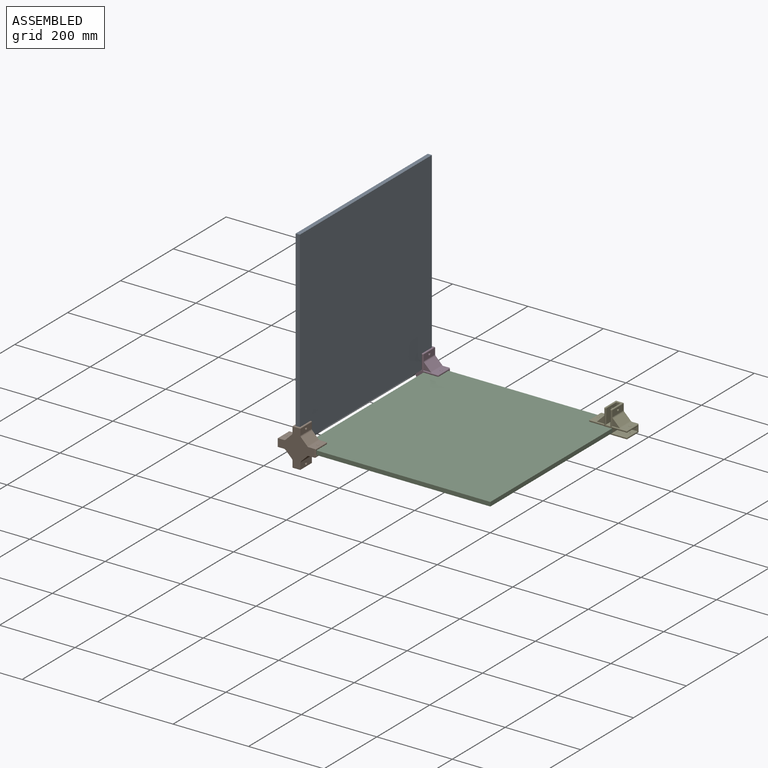
[diagram: assembled view]
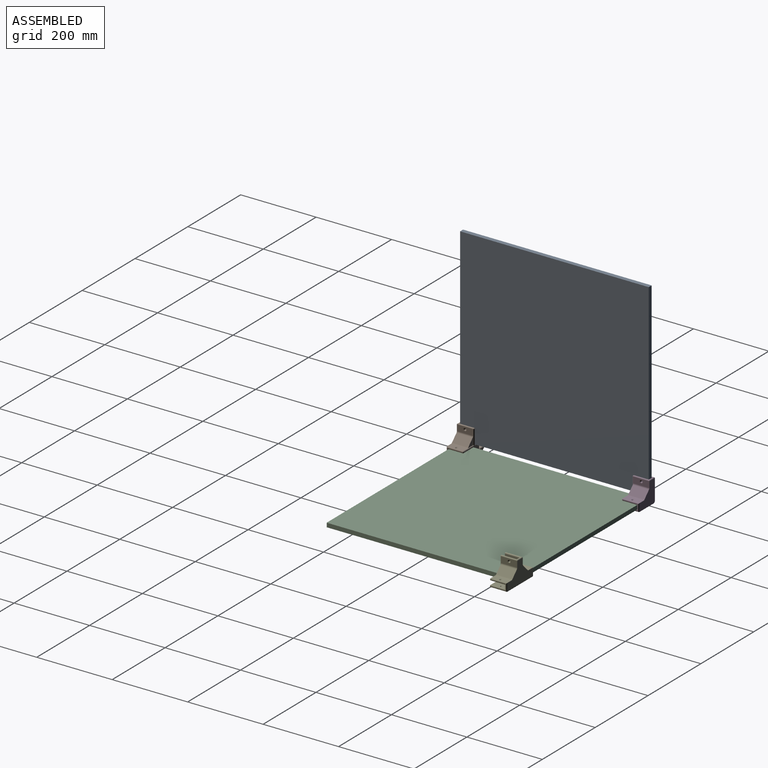
[diagram: assembled view, second angle]
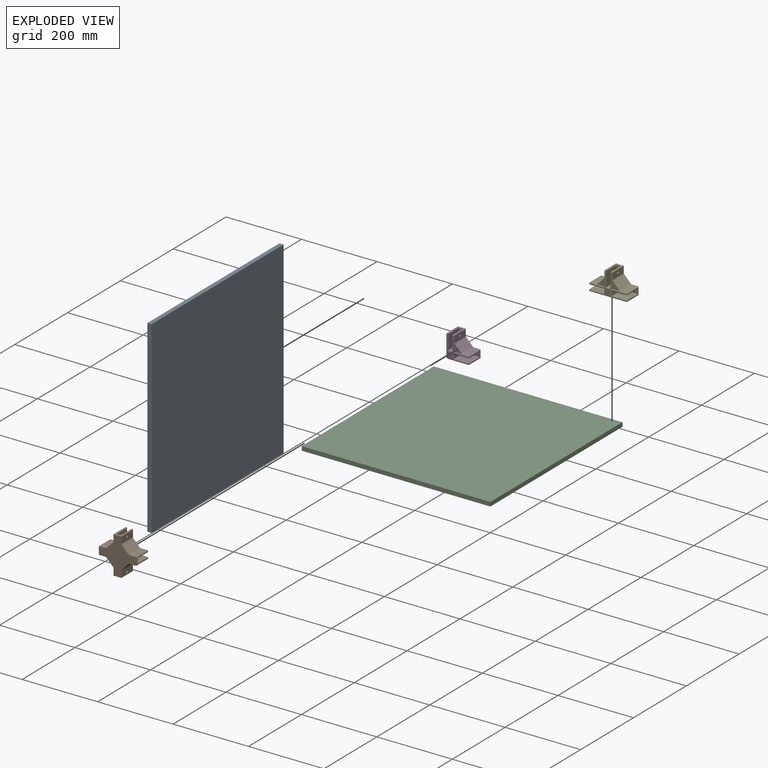
[diagram: exploded view]
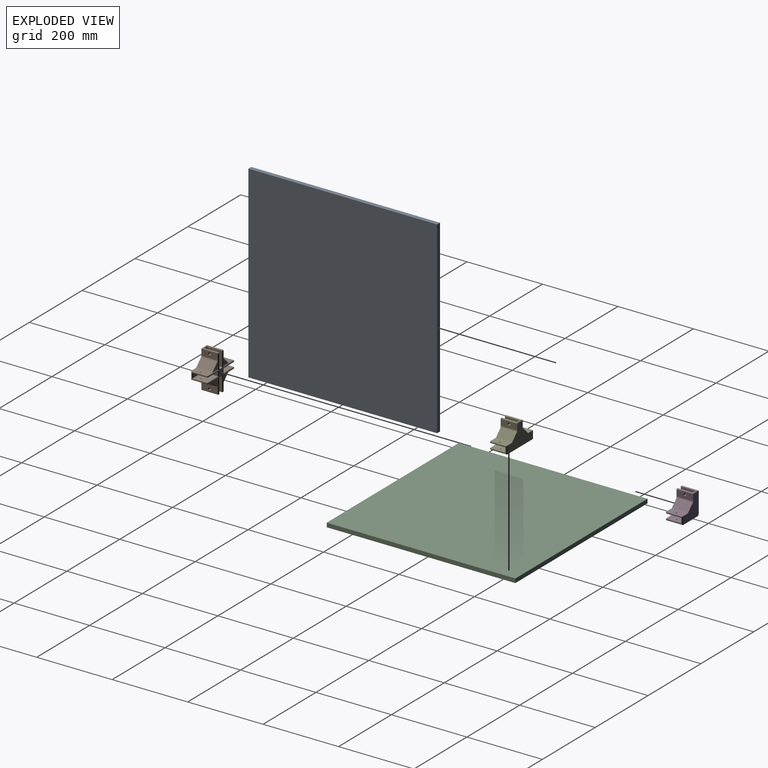
[diagram: exploded view, second angle]
ASSEMBLY  parts=5 mates=4
PART A: 6 faces, bbox 500x500x11 mm
  f0: plane 500x11mm, normal (1,0,0), area 5500mm2, adj f1,f3,f4,f5
  f1: plane 500x11mm, normal (0,1,0), area 5500mm2, adj f0,f2,f4,f5
  f2: plane 500x11mm, normal (-1,0,0), area 5500mm2, adj f1,f3,f4,f5
  f3: plane 500x11mm, normal (0,-1,0), area 5500mm2, adj f0,f2,f4,f5
  f4: plane 500x500mm, normal (0,0,1), area 250000mm2, adj f0,f1,f2,f3
  f5: plane 500x500mm, normal (0,0,-1), area 250000mm2, adj f0,f1,f2,f3
PART B: 130 faces, bbox 101x101x45 mm
  f0: plane 43x15.93mm, normal (-1,0,0), area 644.2mm2, adj f25,f52,f65,f112,f129
  f1: plane 43x15.93mm, normal (0,1,0), area 644.2mm2, adj f25,f40,f46,f113,f127
  f2: plane 43x15.93mm, normal (0,-1,0), area 644.2mm2, adj f25,f41,f47,f106,f126
  f3: plane 43x15.93mm, normal (1,0,0), area 644.2mm2, adj f25,f74,f79,f110,f122
  f4: plane 41x17mm, normal (-1,0,0), area 97mm2, adj f30,f33,f34,f37,f39,f40,f41,f42
  f5: plane 38x38mm, normal (0,-1,0), area 1436.9mm2, adj f6,f29,f32,f33,f119
  f6: plane 38x11mm, normal (-1,0,0), area 418mm2, adj f5,f7,f29,f31
  f7: plane 38x38mm, normal (0,1,0), area 1436.9mm2, adj f6,f29,f34,f35,f118
  f8: plane 43x15.93mm, normal (-1,0,0), area 644.2mm2, adj f25,f53,f66,f107,f128
  f9: plane 41x17mm, normal (0,-1,0), area 97mm2, adj f54,f55,f61,f66,f67,f71,f75,f76
  f10: plane 38x38mm, normal (1,0,0), area 1436.9mm2, adj f11,f27,f55,f56,f117
  f11: plane 38x11mm, normal (0,-1,0), area 418mm2, adj f10,f12,f27,f62
  f12: plane 38x38mm, normal (-1,0,0), area 1436.9mm2, adj f11,f27,f67,f68,f116
  f13: plane 43x15.93mm, normal (1,0,0), area 644.2mm2, adj f25,f75,f81,f108,f125
  f14: plane 43x15.93mm, normal (0,-1,0), area 644.2mm2, adj f25,f84,f85,f109,f124
  f15: plane 41x17mm, normal (1,0,0), area 97mm2, adj f80,f83,f84,f90,f91,f95,f96,f97
  f16: plane 38x38mm, normal (0,1,0), area 1436.9mm2, adj f17,f28,f92,f96,f115
  f17: plane 38x11mm, normal (1,0,0), area 418mm2, adj f16,f18,f28,f88
  f18: plane 38x38mm, normal (0,-1,0), area 1436.9mm2, adj f17,f28,f89,f95,f114
  f19: plane 43x15.93mm, normal (0,1,0), area 644.2mm2, adj f25,f82,f83,f111,f123
  f20: plane 41x17mm, normal (0,1,0), area 97mm2, adj f50,f51,f58,f64,f65,f70,f73,f74
  f21: plane 38x38mm, normal (-1,0,0), area 1436.9mm2, adj f22,f26,f63,f64,f121
  f22: plane 38x11mm, normal (0,1,0), area 418mm2, adj f21,f23,f26,f57
  f23: plane 38x38mm, normal (1,0,0), area 1436.9mm2, adj f22,f26,f49,f50,f120
  f24: plane 97x97mm, normal (0,0,1), area 609mm2, adj f31,f32,f35,f39,f42,f46,f47,f49
  f25: plane 97x97mm, normal (0,0,-1), area 4437.3mm2, adj f0,f1,f2,f3,f8,f13,f14,f19
  f26: plane 38x11mm, normal (0,0,1), area 418mm2, adj f21,f22,f23,f58
  f27: plane 38x11mm, normal (0,0,1), area 418mm2, adj f10,f11,f12,f61
  f28: plane 38x11mm, normal (0,0,1), area 418mm2, adj f16,f17,f18,f97
  f29: plane 38x11mm, normal (0,0,1), area 418mm2, adj f5,f6,f7,f30
  f30: cylinder r=2mm len=15mm, axis (0,1,0), area 39.1mm2, adj f4,f29,f33,f34
  f31: cylinder r=2mm len=15mm, axis (0,1,0), area 39.1mm2, adj f6,f24,f32,f35
  f32: cylinder r=2mm len=40mm, axis (-1,0,0), area 121.7mm2, adj f5,f24,f31,f36
  f33: cylinder r=2mm len=40mm, axis (0,0,-1), area 121.7mm2, adj f4,f5,f30,f36
  f34: cylinder r=2mm len=40mm, axis (0,0,1), area 121.7mm2, adj f4,f7,f30,f38
  f35: cylinder r=2mm len=40mm, axis (1,0,0), area 121.7mm2, adj f7,f24,f31,f38
  f36: sphere r=2mm, area 6.3mm2, adj f32,f33,f39
  f37: cylinder r=2mm len=21mm, axis (0,-1,0), area 61.4mm2, adj f4,f25,f40,f41
  f38: sphere r=2mm, area 6.3mm2, adj f34,f35,f42
  f39: cylinder r=2mm len=2mm, axis (0,1,0), area 3.1mm2, adj f4,f24,f36,f43
  f40: cylinder r=2mm len=43mm, axis (0,0,1), area 132.8mm2, adj f1,f4,f37,f43
  f41: cylinder r=2mm len=43mm, axis (0,0,-1), area 132.8mm2, adj f2,f4,f37,f44
  f42: cylinder r=2mm len=2mm, axis (0,1,0), area 3.1mm2, adj f4,f24,f38,f44
  f43: sphere r=2mm, area 6.3mm2, adj f39,f40,f46
  f44: sphere r=2mm, area 6.3mm2, adj f41,f42,f47
  f45: sphere r=2mm, area 6.3mm2, adj f49,f50,f51
  f46: cylinder r=2mm len=40mm, axis (1,0,0), area 121.7mm2, adj f1,f24,f43,f52,f104
  f47: cylinder r=2mm len=40mm, axis (-1,0,0), area 121.7mm2, adj f2,f24,f44,f53,f102
  f48: sphere r=2mm, area 6.3mm2, adj f54,f55,f56
  f49: cylinder r=2mm len=40mm, axis (0,-1,0), area 121.7mm2, adj f23,f24,f45,f57
  f50: cylinder r=2mm len=40mm, axis (0,0,1), area 121.7mm2, adj f20,f23,f45,f58
  f51: cylinder r=2mm len=2mm, axis (1,0,0), area 3.1mm2, adj f20,f24,f45,f59
  f52: cylinder r=2mm len=40mm, axis (0,1,0), area 121.7mm2, adj f0,f24,f46,f59,f104
  f53: cylinder r=2mm len=40mm, axis (0,1,0), area 121.7mm2, adj f8,f24,f47,f60,f102
  f54: cylinder r=2mm len=2mm, axis (-1,0,0), area 3.1mm2, adj f9,f24,f48,f60
  f55: cylinder r=2mm len=40mm, axis (0,0,1), area 121.7mm2, adj f9,f10,f48,f61
  f56: cylinder r=2mm len=40mm, axis (0,-1,0), area 121.7mm2, adj f10,f24,f48,f62
  f57: cylinder r=2mm len=15mm, axis (1,0,0), area 39.1mm2, adj f22,f24,f49,f63
  f58: cylinder r=2mm len=15mm, axis (1,0,0), area 39.1mm2, adj f20,f26,f50,f64
  f59: sphere r=2mm, area 6.3mm2, adj f51,f52,f65
  f60: sphere r=2mm, area 6.3mm2, adj f53,f54,f66
  f61: cylinder r=2mm len=15mm, axis (-1,0,0), area 39.1mm2, adj f9,f27,f55,f67
  f62: cylinder r=2mm len=15mm, axis (-1,0,0), area 39.1mm2, adj f11,f24,f56,f68
  f63: cylinder r=2mm len=40mm, axis (0,1,0), area 121.7mm2, adj f21,f24,f57,f69
  f64: cylinder r=2mm len=40mm, axis (0,0,-1), area 121.7mm2, adj f20,f21,f58,f69
  f65: cylinder r=2mm len=43mm, axis (0,0,-1), area 132.8mm2, adj f0,f20,f59,f70
  f66: cylinder r=2mm len=43mm, axis (0,0,1), area 132.8mm2, adj f8,f9,f60,f71
  f67: cylinder r=2mm len=40mm, axis (0,0,-1), area 121.7mm2, adj f9,f12,f61,f72
  f68: cylinder r=2mm len=40mm, axis (0,1,0), area 121.7mm2, adj f12,f24,f62,f72
  f69: sphere r=2mm, area 6.3mm2, adj f63,f64,f73
  f70: cylinder r=2mm len=21mm, axis (-1,0,0), area 61.4mm2, adj f20,f25,f65,f74
  f71: cylinder r=2mm len=21mm, axis (1,0,0), area 61.4mm2, adj f9,f25,f66,f75
  f72: sphere r=2mm, area 6.3mm2, adj f67,f68,f76
  f73: cylinder r=2mm len=2mm, axis (1,0,0), area 3.1mm2, adj f20,f24,f69,f77
  f74: cylinder r=2mm len=43mm, axis (0,0,1), area 132.8mm2, adj f3,f20,f70,f77
  f75: cylinder r=2mm len=43mm, axis (0,0,-1), area 132.8mm2, adj f9,f13,f71,f78
  f76: cylinder r=2mm len=2mm, axis (-1,0,0), area 3.1mm2, adj f9,f24,f72,f78
  f77: sphere r=2mm, area 6.3mm2, adj f73,f74,f79
  f78: sphere r=2mm, area 6.3mm2, adj f75,f76,f81
  f79: cylinder r=2mm len=40mm, axis (0,-1,0), area 121.7mm2, adj f3,f24,f77,f82,f98
  f80: cylinder r=2mm len=21mm, axis (0,1,0), area 61.4mm2, adj f15,f25,f83,f84
  f81: cylinder r=2mm len=40mm, axis (0,-1,0), area 121.7mm2, adj f13,f24,f78,f85,f100
  f82: cylinder r=2mm len=40mm, axis (1,0,0), area 121.7mm2, adj f19,f24,f79,f86,f98
  f83: cylinder r=2mm len=43mm, axis (0,0,-1), area 132.8mm2, adj f15,f19,f80,f86
  f84: cylinder r=2mm len=43mm, axis (0,0,1), area 132.8mm2, adj f14,f15,f80,f87
  f85: cylinder r=2mm len=40mm, axis (-1,0,0), area 121.7mm2, adj f14,f24,f81,f87,f100
  f86: sphere r=2mm, area 6.3mm2, adj f82,f83,f90
  f87: sphere r=2mm, area 6.3mm2, adj f84,f85,f91
  f88: cylinder r=2mm len=15mm, axis (0,-1,0), area 39.1mm2, adj f17,f24,f89,f92
  f89: cylinder r=2mm len=40mm, axis (-1,0,0), area 121.7mm2, adj f18,f24,f88,f93
  f90: cylinder r=2mm len=2mm, axis (0,-1,0), area 3.1mm2, adj f15,f24,f86,f93
  f91: cylinder r=2mm len=2mm, axis (0,-1,0), area 3.1mm2, adj f15,f24,f87,f94
  f92: cylinder r=2mm len=40mm, axis (1,0,0), area 121.7mm2, adj f16,f24,f88,f94
  f93: sphere r=2mm, area 6.3mm2, adj f89,f90,f95
  f94: sphere r=2mm, area 6.3mm2, adj f91,f92,f96
  f95: cylinder r=2mm len=40mm, axis (0,0,-1), area 121.7mm2, adj f15,f18,f93,f97
  f96: cylinder r=2mm len=40mm, axis (0,0,1), area 121.7mm2, adj f15,f16,f94,f97
  f97: cylinder r=2mm len=15mm, axis (0,-1,0), area 39.1mm2, adj f15,f28,f95,f96
  f98: plane 22.07x22.07mm, normal (0,0,1), area 201.1mm2, adj f79,f82,f99,f110,f111
  f99: plane 43x17.07mm, normal (0.71,0.71,0), area 1038.1mm2, adj f25,f98,f110,f111
  f100: plane 22.07x22.07mm, normal (0,0,1), area 201.1mm2, adj f81,f85,f101,f108,f109
  f101: plane 43x17.07mm, normal (0.71,-0.71,0), area 1038.1mm2, adj f25,f100,f108,f109
  f102: plane 22.07x22.07mm, normal (0,0,1), area 201.1mm2, adj f47,f53,f103,f106,f107
  f103: plane 43x17.07mm, normal (-0.71,-0.71,0), area 1038.1mm2, adj f25,f102,f106,f107
  f104: plane 22.07x22.07mm, normal (0,0,1), area 201.1mm2, adj f46,f52,f105,f112,f113
  f105: plane 43x17.07mm, normal (-0.71,0.71,0), area 1038.1mm2, adj f25,f104,f112,f113
  f106: cylinder r=5mm len=43mm, axis (0,0,1), area 168.9mm2, adj f2,f25,f102,f103
  f107: cylinder r=5mm len=43mm, axis (0,0,1), area 168.9mm2, adj f8,f25,f102,f103
  f108: cylinder r=5mm len=43mm, axis (0,0,-1), area 168.9mm2, adj f13,f25,f100,f101
  f109: cylinder r=5mm len=43mm, axis (0,0,1), area 168.9mm2, adj f14,f25,f100,f101
  f110: cylinder r=5mm len=43mm, axis (0,0,1), area 168.9mm2, adj f3,f25,f98,f99
  f111: cylinder r=5mm len=43mm, axis (0,0,1), area 168.9mm2, adj f19,f25,f98,f99
  f112: cylinder r=5mm len=43mm, axis (0,0,1), area 168.9mm2, adj f0,f25,f104,f105
  f113: cylinder r=5mm len=43mm, axis (0,0,-1), area 168.9mm2, adj f1,f25,f104,f105
  f114: cylinder r=1.5mm len=3mm, axis (0,-1,0), area 27.3mm2, adj f18,f123
  f115: cylinder r=1.5mm len=3mm, axis (0,-1,0), area 27.3mm2, adj f16,f124
  f116: cylinder r=1.5mm len=3mm, axis (-1,0,0), area 27.3mm2, adj f12,f125
  f117: cylinder r=1.5mm len=3mm, axis (-1,0,0), area 27.3mm2, adj f10,f128
  f118: cylinder r=1.5mm len=3mm, axis (0,1,0), area 27.3mm2, adj f7,f126
  f119: cylinder r=1.5mm len=3mm, axis (0,1,0), area 27.3mm2, adj f5,f127
  f120: cylinder r=1.5mm len=3mm, axis (1,0,0), area 27.3mm2, adj f23,f129
  f121: cylinder r=1.5mm len=3mm, axis (1,0,0), area 27.3mm2, adj f21,f122
  f122: cone r=1.5mm half-angle=45deg, axis (1,0,0), area 47.6mm2, adj f3,f121
  f123: cone r=1.5mm half-angle=45deg, axis (0,1,0), area 47.6mm2, adj f19,f114
  f124: cone r=1.5mm half-angle=45deg, axis (0,-1,0), area 47.6mm2, adj f14,f115
  f125: cone r=1.5mm half-angle=45deg, axis (1,0,0), area 47.6mm2, adj f13,f116
  f126: cone r=3.6mm half-angle=45deg, axis (0,-1,0), area 47.6mm2, adj f2,f118
  f127: cone r=1.5mm half-angle=45deg, axis (0,1,0), area 47.6mm2, adj f1,f119
  f128: cone r=1.5mm half-angle=45deg, axis (-1,0,0), area 47.6mm2, adj f8,f117
  f129: cone r=3.6mm half-angle=45deg, axis (-1,0,0), area 47.6mm2, adj f0,f120
PART C: same geometry as A
PART D: 64 faces, bbox 61.4x61.4x45 mm
  f0: plane 57x57mm, normal (0,0,1), area 447.1mm2, adj f17,f18,f21,f25,f28,f31,f33,f34
  f1: plane 43x15.93mm, normal (1,0,0), area 644.2mm2, adj f13,f26,f31,f52,f60
  f2: plane 54x43mm, normal (-1,0,0), area 2281.3mm2, adj f13,f27,f33,f61,f62
  f3: plane 54x43mm, normal (0,-1,0), area 2281.3mm2, adj f13,f36,f37,f59,f62
  f4: plane 41x17mm, normal (1,0,0), area 97mm2, adj f32,f35,f36,f42,f43,f47,f48,f49
  f5: plane 38x38mm, normal (0,1,0), area 1436.9mm2, adj f6,f15,f44,f48,f55
  f6: plane 38x11mm, normal (1,0,0), area 418mm2, adj f5,f7,f15,f40
  f7: plane 38x38mm, normal (0,-1,0), area 1436.9mm2, adj f6,f15,f41,f47,f54
  f8: plane 43x15.93mm, normal (0,1,0), area 644.2mm2, adj f13,f34,f35,f53,f58
  f9: plane 41x17mm, normal (0,1,0), area 97mm2, adj f16,f19,f20,f23,f25,f26,f27,f28
  f10: plane 38x38mm, normal (-1,0,0), area 1436.9mm2, adj f11,f14,f18,f19,f57
  f11: plane 38x11mm, normal (0,1,0), area 418mm2, adj f10,f12,f14,f17
  f12: plane 38x38mm, normal (1,0,0), area 1436.9mm2, adj f11,f14,f20,f21,f56
  f13: plane 59x59mm, normal (0,0,-1), area 2232.7mm2, adj f1,f2,f3,f8,f23,f32,f51,f52
  f14: plane 38x11mm, normal (0,0,1), area 418mm2, adj f10,f11,f12,f16
  f15: plane 38x11mm, normal (0,0,1), area 418mm2, adj f5,f6,f7,f49
  f16: cylinder r=2mm len=15mm, axis (1,0,0), area 39.1mm2, adj f9,f14,f19,f20
  f17: cylinder r=2mm len=15mm, axis (1,0,0), area 39.1mm2, adj f0,f11,f18,f21
  f18: cylinder r=2mm len=40mm, axis (0,1,0), area 121.7mm2, adj f0,f10,f17,f22
  f19: cylinder r=2mm len=40mm, axis (0,0,-1), area 121.7mm2, adj f9,f10,f16,f22
  f20: cylinder r=2mm len=40mm, axis (0,0,1), area 121.7mm2, adj f9,f12,f16,f24
  f21: cylinder r=2mm len=40mm, axis (0,-1,0), area 121.7mm2, adj f0,f12,f17,f24
  f22: sphere r=2mm, area 6.3mm2, adj f18,f19,f25
  f23: cylinder r=2mm len=21mm, axis (-1,0,0), area 61.4mm2, adj f9,f13,f26,f27
  f24: sphere r=2mm, area 6.3mm2, adj f20,f21,f28
  f25: cylinder r=2mm len=2mm, axis (1,0,0), area 3.1mm2, adj f0,f9,f22,f29
  f26: cylinder r=2mm len=43mm, axis (0,0,1), area 132.8mm2, adj f1,f9,f23,f29
  f27: cylinder r=2mm len=43mm, axis (0,0,-1), area 132.8mm2, adj f2,f9,f23,f30
  f28: cylinder r=2mm len=2mm, axis (1,0,0), area 3.1mm2, adj f0,f9,f24,f30
  f29: sphere r=2mm, area 6.3mm2, adj f25,f26,f31
  f30: sphere r=2mm, area 6.3mm2, adj f27,f28,f33
  f31: cylinder r=2mm len=40mm, axis (0,-1,0), area 121.7mm2, adj f0,f1,f29,f34,f50
  f32: cylinder r=2mm len=21mm, axis (0,1,0), area 61.4mm2, adj f4,f13,f35,f36
  f33: cylinder r=2mm len=54mm, axis (0,1,0), area 169.6mm2, adj f0,f2,f30,f63
  f34: cylinder r=2mm len=40mm, axis (1,0,0), area 121.7mm2, adj f0,f8,f31,f38,f50
  f35: cylinder r=2mm len=43mm, axis (0,0,-1), area 132.8mm2, adj f4,f8,f32,f38
  f36: cylinder r=2mm len=43mm, axis (0,0,1), area 132.8mm2, adj f3,f4,f32,f39
  f37: cylinder r=2mm len=54mm, axis (-1,0,0), area 169.6mm2, adj f0,f3,f39,f63
  f38: sphere r=2mm, area 6.3mm2, adj f34,f35,f42
  f39: sphere r=2mm, area 6.3mm2, adj f36,f37,f43
  f40: cylinder r=2mm len=15mm, axis (0,-1,0), area 39.1mm2, adj f0,f6,f41,f44
  f41: cylinder r=2mm len=40mm, axis (-1,0,0), area 121.7mm2, adj f0,f7,f40,f45
  f42: cylinder r=2mm len=2mm, axis (0,-1,0), area 3.1mm2, adj f0,f4,f38,f45
  f43: cylinder r=2mm len=2mm, axis (0,-1,0), area 3.1mm2, adj f0,f4,f39,f46
  f44: cylinder r=2mm len=40mm, axis (1,0,0), area 121.7mm2, adj f0,f5,f40,f46
  f45: sphere r=2mm, area 6.3mm2, adj f41,f42,f47
  f46: sphere r=2mm, area 6.3mm2, adj f43,f44,f48
  f47: cylinder r=2mm len=40mm, axis (0,0,-1), area 121.7mm2, adj f4,f7,f45,f49
  f48: cylinder r=2mm len=40mm, axis (0,0,1), area 121.7mm2, adj f4,f5,f46,f49
  f49: cylinder r=2mm len=15mm, axis (0,-1,0), area 39.1mm2, adj f4,f15,f47,f48
  f50: plane 22.07x22.07mm, normal (0,0,1), area 201.1mm2, adj f31,f34,f51,f52,f53
  f51: plane 43x17.07mm, normal (0.71,0.71,0), area 1038.1mm2, adj f13,f50,f52,f53
  f52: cylinder r=5mm len=43mm, axis (0,0,1), area 168.9mm2, adj f1,f13,f50,f51
  f53: cylinder r=5mm len=43mm, axis (0,0,1), area 168.9mm2, adj f8,f13,f50,f51
  f54: cylinder r=1.5mm len=3mm, axis (0,-1,0), area 27.3mm2, adj f7,f58
  f55: cylinder r=1.5mm len=3mm, axis (0,-1,0), area 27.3mm2, adj f5,f59
  f56: cylinder r=1.5mm len=3mm, axis (-1,0,0), area 27.3mm2, adj f12,f61
  f57: cylinder r=1.5mm len=3mm, axis (-1,0,0), area 27.3mm2, adj f10,f60
  f58: cone r=1.5mm half-angle=45deg, axis (0,1,0), area 47.6mm2, adj f8,f54
  f59: cone r=1.5mm half-angle=45deg, axis (0,-1,0), area 47.6mm2, adj f3,f55
  f60: cone r=1.5mm half-angle=45deg, axis (1,0,0), area 47.6mm2, adj f1,f57
  f61: cone r=1.5mm half-angle=45deg, axis (-1,0,0), area 47.6mm2, adj f2,f56
  f62: cylinder r=5mm len=43mm, axis (0,0,-1), area 337.7mm2, adj f2,f3,f13,f63
  f63: torus R=3mm, axis (0,0,1), area 21.1mm2, adj f0,f33,f37,f62
PART E: 92 faces, bbox 101x61x45 mm
  f0: plane 43x15.93mm, normal (-1,0,0), area 644.2mm2, adj f18,f26,f37,f77,f87
  f1: plane 43x15.93mm, normal (0,1,0), area 644.2mm2, adj f18,f31,f43,f76,f86
  f2: plane 43x15.93mm, normal (1,0,0), area 644.2mm2, adj f18,f47,f53,f78,f88
  f3: plane 41x17mm, normal (-1,0,0), area 97mm2, adj f32,f33,f39,f43,f44,f48,f51,f52
  f4: plane 38x38mm, normal (0,-1,0), area 1436.9mm2, adj f5,f21,f33,f34,f85
  f5: plane 38x11mm, normal (-1,0,0), area 418mm2, adj f4,f6,f21,f40
  f6: plane 38x38mm, normal (0,1,0), area 1436.9mm2, adj f5,f21,f44,f45,f84
  f7: plane 97x43mm, normal (0,-1,0), area 4089.6mm2, adj f18,f51,f58,f59,f90,f91
  f8: plane 41x17mm, normal (1,0,0), area 97mm2, adj f54,f57,f58,f64,f65,f69,f70,f71
  f9: plane 38x38mm, normal (0,1,0), area 1436.9mm2, adj f10,f20,f66,f70,f81
  f10: plane 38x11mm, normal (1,0,0), area 418mm2, adj f9,f11,f20,f62
  f11: plane 38x38mm, normal (0,-1,0), area 1436.9mm2, adj f10,f20,f63,f69,f80
  f12: plane 43x15.93mm, normal (0,1,0), area 644.2mm2, adj f18,f56,f57,f79,f89
  f13: plane 41x17mm, normal (0,1,0), area 97mm2, adj f24,f25,f29,f36,f37,f42,f46,f47
  f14: plane 38x38mm, normal (-1,0,0), area 1436.9mm2, adj f15,f19,f35,f36,f83
  f15: plane 38x11mm, normal (0,1,0), area 418mm2, adj f14,f16,f19,f28
  f16: plane 38x38mm, normal (1,0,0), area 1436.9mm2, adj f15,f19,f23,f24,f82
  f17: plane 97x57mm, normal (0,0,1), area 529mm2, adj f23,f25,f26,f28,f31,f32,f34,f35
  f18: plane 97x59mm, normal (0,0,-1), area 3237.2mm2, adj f0,f1,f2,f7,f12,f42,f48,f54
  f19: plane 38x11mm, normal (0,0,1), area 418mm2, adj f14,f15,f16,f29
  f20: plane 38x11mm, normal (0,0,1), area 418mm2, adj f9,f10,f11,f71
  f21: plane 38x11mm, normal (0,0,1), area 418mm2, adj f4,f5,f6,f39
  f22: sphere r=2mm, area 6.3mm2, adj f23,f24,f25
  f23: cylinder r=2mm len=40mm, axis (0,-1,0), area 121.7mm2, adj f16,f17,f22,f28
  f24: cylinder r=2mm len=40mm, axis (0,0,1), area 121.7mm2, adj f13,f16,f22,f29
  f25: cylinder r=2mm len=2mm, axis (1,0,0), area 3.1mm2, adj f13,f17,f22,f30
  f26: cylinder r=2mm len=40mm, axis (0,1,0), area 121.7mm2, adj f0,f17,f30,f31,f74
  f27: sphere r=2mm, area 6.3mm2, adj f32,f33,f34
  f28: cylinder r=2mm len=15mm, axis (1,0,0), area 39.1mm2, adj f15,f17,f23,f35
  f29: cylinder r=2mm len=15mm, axis (1,0,0), area 39.1mm2, adj f13,f19,f24,f36
  f30: sphere r=2mm, area 6.3mm2, adj f25,f26,f37
  f31: cylinder r=2mm len=40mm, axis (1,0,0), area 121.7mm2, adj f1,f17,f26,f38,f74
  f32: cylinder r=2mm len=2mm, axis (0,1,0), area 3.1mm2, adj f3,f17,f27,f38
  f33: cylinder r=2mm len=40mm, axis (0,0,-1), area 121.7mm2, adj f3,f4,f27,f39
  f34: cylinder r=2mm len=40mm, axis (-1,0,0), area 121.7mm2, adj f4,f17,f27,f40
  f35: cylinder r=2mm len=40mm, axis (0,1,0), area 121.7mm2, adj f14,f17,f28,f41
  f36: cylinder r=2mm len=40mm, axis (0,0,-1), area 121.7mm2, adj f13,f14,f29,f41
  f37: cylinder r=2mm len=43mm, axis (0,0,-1), area 132.8mm2, adj f0,f13,f30,f42
  f38: sphere r=2mm, area 6.3mm2, adj f31,f32,f43
  f39: cylinder r=2mm len=15mm, axis (0,1,0), area 39.1mm2, adj f3,f21,f33,f44
  f40: cylinder r=2mm len=15mm, axis (0,1,0), area 39.1mm2, adj f5,f17,f34,f45
  f41: sphere r=2mm, area 6.3mm2, adj f35,f36,f46
  f42: cylinder r=2mm len=21mm, axis (-1,0,0), area 61.4mm2, adj f13,f18,f37,f47
  f43: cylinder r=2mm len=43mm, axis (0,0,1), area 132.8mm2, adj f1,f3,f38,f48
  f44: cylinder r=2mm len=40mm, axis (0,0,1), area 121.7mm2, adj f3,f6,f39,f49
  f45: cylinder r=2mm len=40mm, axis (1,0,0), area 121.7mm2, adj f6,f17,f40,f49
  f46: cylinder r=2mm len=2mm, axis (1,0,0), area 3.1mm2, adj f13,f17,f41,f50
  f47: cylinder r=2mm len=43mm, axis (0,0,1), area 132.8mm2, adj f2,f13,f42,f50
  f48: cylinder r=2mm len=21mm, axis (0,-1,0), area 61.4mm2, adj f3,f18,f43,f51
  f49: sphere r=2mm, area 6.3mm2, adj f44,f45,f52
  f50: sphere r=2mm, area 6.3mm2, adj f46,f47,f53
  f51: cylinder r=2mm len=43mm, axis (0,0,-1), area 132.8mm2, adj f3,f7,f48,f55
  f52: cylinder r=2mm len=2mm, axis (0,1,0), area 3.1mm2, adj f3,f17,f49,f55
  f53: cylinder r=2mm len=40mm, axis (0,-1,0), area 121.7mm2, adj f2,f17,f50,f56,f72
  f54: cylinder r=2mm len=21mm, axis (0,1,0), area 61.4mm2, adj f8,f18,f57,f58
  f55: sphere r=2mm, area 6.3mm2, adj f51,f52,f59
  f56: cylinder r=2mm len=40mm, axis (1,0,0), area 121.7mm2, adj f12,f17,f53,f60,f72
  f57: cylinder r=2mm len=43mm, axis (0,0,-1), area 132.8mm2, adj f8,f12,f54,f60
  f58: cylinder r=2mm len=43mm, axis (0,0,1), area 132.8mm2, adj f7,f8,f54,f61
  f59: cylinder r=2mm len=97mm, axis (-1,0,0), area 304.7mm2, adj f7,f17,f55,f61
  f60: sphere r=2mm, area 6.3mm2, adj f56,f57,f64
  f61: sphere r=2mm, area 6.3mm2, adj f58,f59,f65
  f62: cylinder r=2mm len=15mm, axis (0,-1,0), area 39.1mm2, adj f10,f17,f63,f66
  f63: cylinder r=2mm len=40mm, axis (-1,0,0), area 121.7mm2, adj f11,f17,f62,f67
  f64: cylinder r=2mm len=2mm, axis (0,-1,0), area 3.1mm2, adj f8,f17,f60,f67
  f65: cylinder r=2mm len=2mm, axis (0,-1,0), area 3.1mm2, adj f8,f17,f61,f68
  f66: cylinder r=2mm len=40mm, axis (1,0,0), area 121.7mm2, adj f9,f17,f62,f68
  f67: sphere r=2mm, area 6.3mm2, adj f63,f64,f69
  f68: sphere r=2mm, area 6.3mm2, adj f65,f66,f70
  f69: cylinder r=2mm len=40mm, axis (0,0,-1), area 121.7mm2, adj f8,f11,f67,f71
  f70: cylinder r=2mm len=40mm, axis (0,0,1), area 121.7mm2, adj f8,f9,f68,f71
  f71: cylinder r=2mm len=15mm, axis (0,-1,0), area 39.1mm2, adj f8,f20,f69,f70
  f72: plane 22.07x22.07mm, normal (0,0,1), area 201.1mm2, adj f53,f56,f73,f78,f79
  f73: plane 43x17.07mm, normal (0.71,0.71,0), area 1038.1mm2, adj f18,f72,f78,f79
  f74: plane 22.07x22.07mm, normal (0,0,1), area 201.1mm2, adj f26,f31,f75,f76,f77
  f75: plane 43x17.07mm, normal (-0.71,0.71,0), area 1038.1mm2, adj f18,f74,f76,f77
  f76: cylinder r=5mm len=43mm, axis (0,0,-1), area 168.9mm2, adj f1,f18,f74,f75
  f77: cylinder r=5mm len=43mm, axis (0,0,1), area 168.9mm2, adj f0,f18,f74,f75
  f78: cylinder r=5mm len=43mm, axis (0,0,1), area 168.9mm2, adj f2,f18,f72,f73
  f79: cylinder r=5mm len=43mm, axis (0,0,1), area 168.9mm2, adj f12,f18,f72,f73
  f80: cylinder r=1.5mm len=3mm, axis (0,1,0), area 27.3mm2, adj f11,f89
  f81: cylinder r=1.5mm len=3mm, axis (0,1,0), area 27.3mm2, adj f9,f91
  f82: cylinder r=1.5mm len=3mm, axis (1,0,0), area 27.3mm2, adj f16,f87
  f83: cylinder r=1.5mm len=3mm, axis (1,0,0), area 27.3mm2, adj f14,f88
  f84: cylinder r=1.5mm len=3mm, axis (0,1,0), area 27.3mm2, adj f6,f90
  f85: cylinder r=1.5mm len=3mm, axis (0,1,0), area 27.3mm2, adj f4,f86
  f86: cone r=1.5mm half-angle=45deg, axis (0,1,0), area 47.6mm2, adj f1,f85
  f87: cone r=3.6mm half-angle=45deg, axis (-1,0,0), area 47.6mm2, adj f0,f82
  f88: cone r=1.5mm half-angle=45deg, axis (1,0,0), area 47.6mm2, adj f2,f83
  f89: cone r=1.5mm half-angle=45deg, axis (0,1,0), area 47.6mm2, adj f12,f80
  f90: cone r=3.6mm half-angle=45deg, axis (0,-1,0), area 47.6mm2, adj f7,f84
  f91: cone r=3.6mm half-angle=45deg, axis (0,-1,0), area 47.6mm2, adj f7,f81
PLACE A rot(axis=(0,-1,0),90deg) t=(-108.52,56.01,217.65)mm
PLACE B rot(axis=(-1,0,0),90deg) t=(-114.02,-198.99,-42.85)mm
PLACE C t=(146.48,56.01,-48.35)mm
PLACE D rot(axis=(1,0,0),90deg) t=(-114.02,311.01,-42.85)mm
PLACE E rot(axis=(1,0,0),90deg) t=(385.98,311.01,-42.85)mm
MATE fastened E.f9 <-> C.f5  axis (0,0,1) through (396.48,306.01,-48.35)mm
MATE fastened B.f28 <-> C.f3  axis (0,1,0) through (-103.52,-193.99,-37.35)mm
MATE fastened D.f15 <-> C.f1  axis (0,-1,0) through (-103.52,306.01,-37.35)mm
MATE fastened A.f3 <-> B.f27  axis (0,-1,0) through (-119.52,-193.99,-32.35)mm
